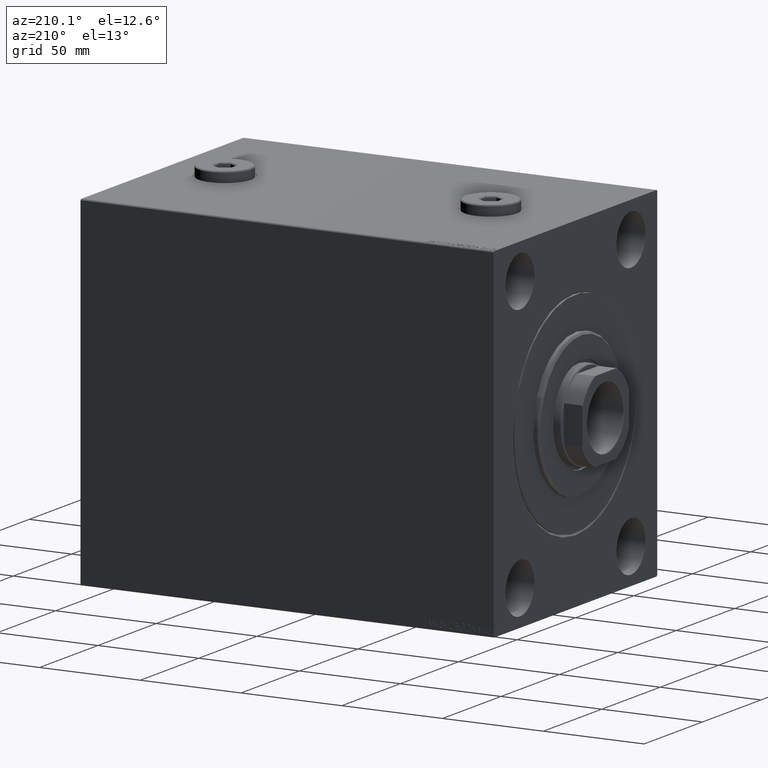
[diagram: clean part render]
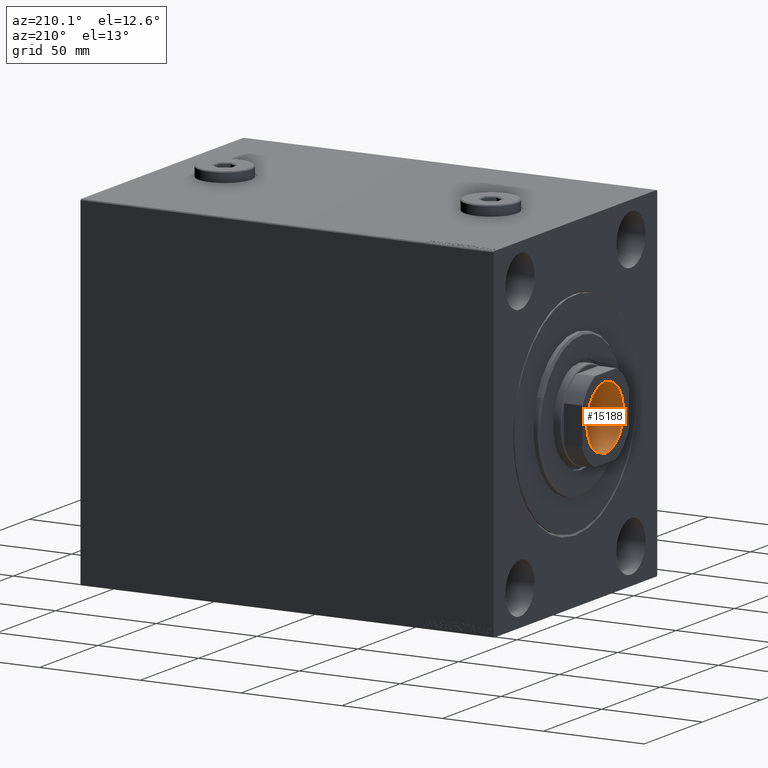
[diagram: same view with one face highlighted and labeled with its STEP entity id]
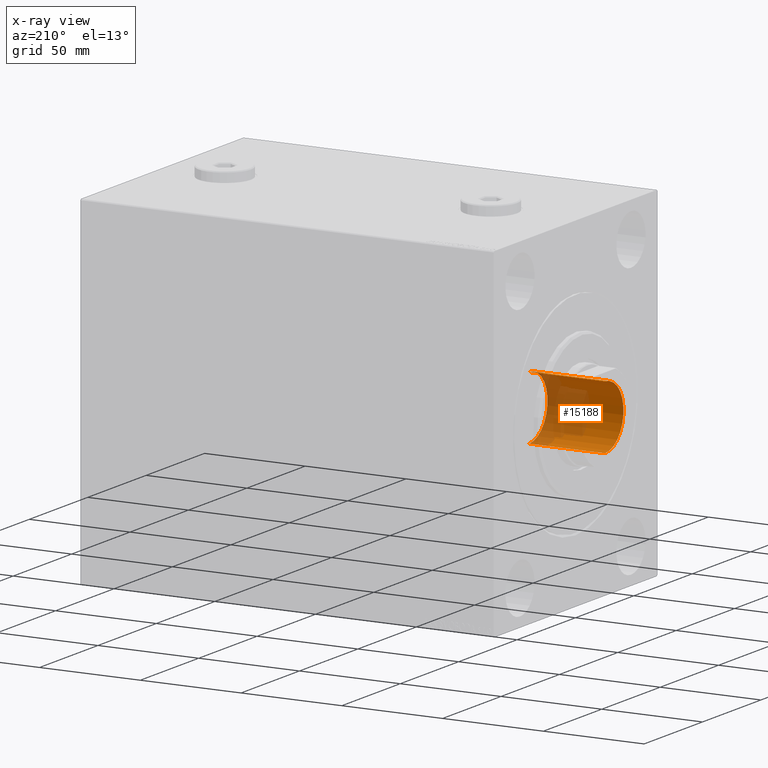
[diagram: x-ray of the same camera — body ghosted, the highlighted face saturated]
A machine part, auxiliary view. The second image highlights one B-rep face of the part: STEP entity #15188.
The next image is the same camera in x-ray: the body ghosted, the highlighted face saturated — about 44% of this face is hidden behind the body in this view.
In plain terms, the highlighted cylindrical surface (partial cylindrical patch) has radius 15.75 mm, axis along (-1, 0, 0).
Its self-contained STEP definition (entity closure, byte-faithful):
#2191 = CARTESIAN_POINT ( 'NONE',  ( 15.74999999999999289, 0.000000000000000000, 194.0000000000000000 ) ) ;
#2986 = AXIS2_PLACEMENT_3D ( 'NONE', #3599, #7703, #6803 ) ;
#3599 = CARTESIAN_POINT ( 'NONE',  ( 0.000000000000000000, 0.000000000000000000, 156.0000000000000000 ) ) ;
#5030 = CIRCLE ( 'NONE', #20429, 15.74999999999999289 ) ;
#6031 = CARTESIAN_POINT ( 'NONE',  ( 0.000000000000000000, 0.000000000000000000, 193.6999999999999602 ) ) ;
#6359 = CYLINDRICAL_SURFACE ( 'NONE', #38849, 15.74999999999999289 ) ;
#6803 = DIRECTION ( 'NONE',  ( 1.000000000000000000, 0.000000000000000000, 0.000000000000000000 ) ) ;
#7703 = DIRECTION ( 'NONE',  ( -0.000000000000000000, -0.000000000000000000, 1.000000000000000000 ) ) ;
#11302 = ORIENTED_EDGE ( 'NONE', *, *, #35843, .T. ) ;
#12921 = EDGE_LOOP ( 'NONE', ( #38554, #37376, #11302, #19310 ) ) ;
#13131 = DIRECTION ( 'NONE',  ( 0.000000000000000000, 0.000000000000000000, 1.000000000000000000 ) ) ;
#13656 = EDGE_CURVE ( 'NONE', #33591, #30423, #45179, .T. ) ;
#13940 = CIRCLE ( 'NONE', #2986, 15.74999999999999289 ) ;
#14253 = LINE ( 'NONE', #21132, #19692 ) ;
#14424 = EDGE_CURVE ( 'NONE', #41249, #33591, #13940, .T. ) ;
#15188 = ADVANCED_FACE ( 'NONE', ( #23807 ), #6359, .F. ) ;
#19310 = ORIENTED_EDGE ( 'NONE', *, *, #13656, .F. ) ;
#19692 = VECTOR ( 'NONE', #32130, 1000.000000000000000 ) ;
#20358 = DIRECTION ( 'NONE',  ( 1.000000000000000000, 0.000000000000000000, 0.000000000000000000 ) ) ;
#20429 = AXIS2_PLACEMENT_3D ( 'NONE', #6031, #13131, #44963 ) ;
#21132 = CARTESIAN_POINT ( 'NONE',  ( -15.74999999999999289, 1.928818708657080556E-15, 194.0000000000000000 ) ) ;
#23807 = FACE_OUTER_BOUND ( 'NONE', #12921, .T. ) ;
#24254 = DIRECTION ( 'NONE',  ( -0.000000000000000000, -0.000000000000000000, 1.000000000000000000 ) ) ;
#26704 = CARTESIAN_POINT ( 'NONE',  ( -15.74999999999999289, 1.928818708657080556E-15, 193.6999999999999602 ) ) ;
#27551 = VERTEX_POINT ( 'NONE', #26704 ) ;
#28874 = CARTESIAN_POINT ( 'NONE',  ( 15.74999999999999289, 0.000000000000000000, 156.0000000000000000 ) ) ;
#30423 = VERTEX_POINT ( 'NONE', #41814 ) ;
#32130 = DIRECTION ( 'NONE',  ( -0.000000000000000000, -0.000000000000000000, 1.000000000000000000 ) ) ;
#33591 = VERTEX_POINT ( 'NONE', #28874 ) ;
#34068 = CARTESIAN_POINT ( 'NONE',  ( -15.74999999999999289, 1.928818708657080556E-15, 156.0000000000000000 ) ) ;
#34875 = DIRECTION ( 'NONE',  ( -0.000000000000000000, -0.000000000000000000, 1.000000000000000000 ) ) ;
#35843 = EDGE_CURVE ( 'NONE', #27551, #30423, #5030, .T. ) ;
#35957 = EDGE_CURVE ( 'NONE', #41249, #27551, #14253, .T. ) ;
#37376 = ORIENTED_EDGE ( 'NONE', *, *, #35957, .T. ) ;
#38554 = ORIENTED_EDGE ( 'NONE', *, *, #14424, .F. ) ;
#38849 = AXIS2_PLACEMENT_3D ( 'NONE', #41648, #24254, #20358 ) ;
#41249 = VERTEX_POINT ( 'NONE', #34068 ) ;
#41648 = CARTESIAN_POINT ( 'NONE',  ( 0.000000000000000000, 0.000000000000000000, 194.0000000000000000 ) ) ;
#41814 = CARTESIAN_POINT ( 'NONE',  ( 15.74999999999999289, 0.000000000000000000, 193.6999999999999602 ) ) ;
#42462 = VECTOR ( 'NONE', #34875, 1000.000000000000000 ) ;
#44963 = DIRECTION ( 'NONE',  ( 1.000000000000000000, 0.000000000000000000, 0.000000000000000000 ) ) ;
#45179 = LINE ( 'NONE', #2191, #42462 ) ;